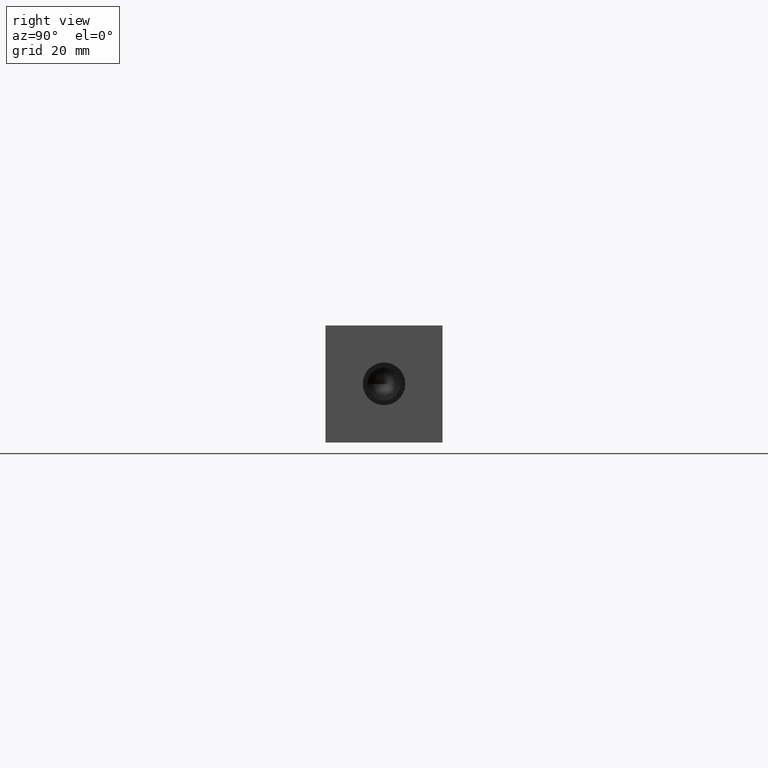
[diagram: clean part render]
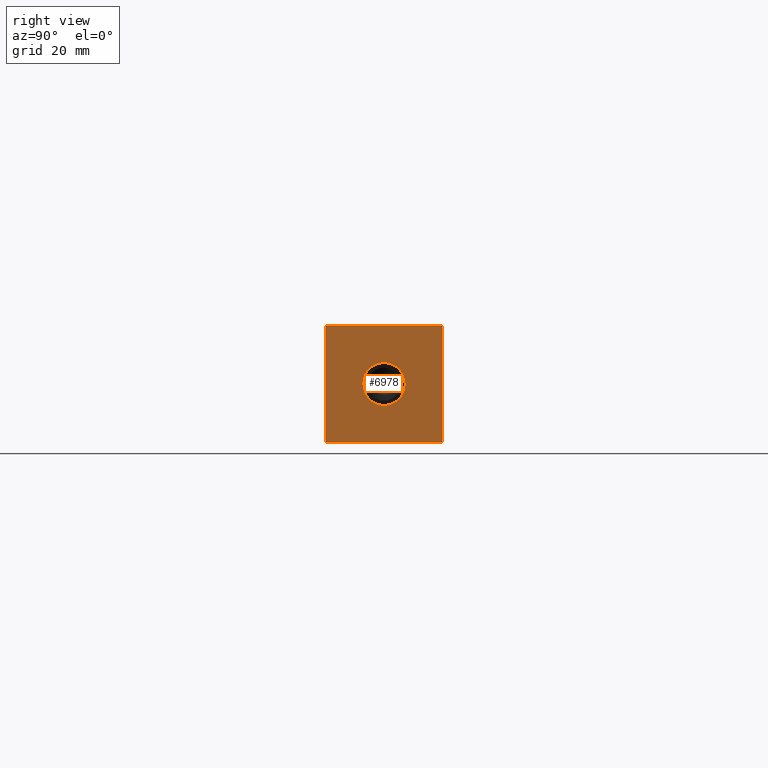
[diagram: same view with one face highlighted and labeled with its STEP entity id]
A machine part, right view. The second image highlights one B-rep face of the part: STEP entity #6978.
In plain terms, the highlighted planar face has unit normal (1, 0, 0).
Its self-contained STEP definition (entity closure, byte-faithful):
#127=CIRCLE('',#7310,6.9342);
#128=CIRCLE('',#7311,6.9342);
#186=FACE_BOUND('',#1160,.T.);
#401=PLANE('',#7326);
#755=FACE_OUTER_BOUND('',#1159,.T.);
#1159=EDGE_LOOP('',(#6201,#6202,#6203,#6204));
#1160=EDGE_LOOP('',(#6205,#6206));
#1407=LINE('',#10815,#2068);
#1827=LINE('',#11990,#2488);
#1828=LINE('',#11993,#2489);
#1829=LINE('',#11994,#2490);
#2068=VECTOR('',#7683,10.);
#2488=VECTOR('',#8649,10.);
#2489=VECTOR('',#8652,10.);
#2490=VECTOR('',#8653,10.);
#2993=VERTEX_POINT('',#10812);
#2994=VERTEX_POINT('',#10814);
#3336=VERTEX_POINT('',#11952);
#3337=VERTEX_POINT('',#11953);
#3348=VERTEX_POINT('',#11988);
#3349=VERTEX_POINT('',#11992);
#3783=EDGE_CURVE('',#2993,#2994,#1407,.T.);
#4287=EDGE_CURVE('',#3336,#3337,#127,.T.);
#4288=EDGE_CURVE('',#3337,#3336,#128,.T.);
#4305=EDGE_CURVE('',#3348,#2994,#1827,.T.);
#4306=EDGE_CURVE('',#3349,#3348,#1828,.T.);
#4307=EDGE_CURVE('',#3349,#2993,#1829,.T.);
#6201=ORIENTED_EDGE('',*,*,#4306,.T.);
#6202=ORIENTED_EDGE('',*,*,#4305,.T.);
#6203=ORIENTED_EDGE('',*,*,#3783,.F.);
#6204=ORIENTED_EDGE('',*,*,#4307,.F.);
#6205=ORIENTED_EDGE('',*,*,#4287,.T.);
#6206=ORIENTED_EDGE('',*,*,#4288,.T.);
#6978=ADVANCED_FACE('',(#755,#186),#401,.T.);
#7310=AXIS2_PLACEMENT_3D('',#11954,#8608,#8609);
#7311=AXIS2_PLACEMENT_3D('',#11955,#8610,#8611);
#7326=AXIS2_PLACEMENT_3D('',#11991,#8650,#8651);
#7683=DIRECTION('',(0.,1.,0.));
#8608=DIRECTION('center_axis',(-1.,0.,0.));
#8609=DIRECTION('ref_axis',(0.,1.,0.));
#8610=DIRECTION('center_axis',(-1.,0.,0.));
#8611=DIRECTION('ref_axis',(0.,1.,0.));
#8649=DIRECTION('',(0.,0.,1.));
#8650=DIRECTION('center_axis',(1.,0.,0.));
#8651=DIRECTION('ref_axis',(0.,1.,0.));
#8652=DIRECTION('',(0.,1.,0.));
#8653=DIRECTION('',(0.,0.,1.));
#10812=CARTESIAN_POINT('',(231.775,0.,38.1));
#10814=CARTESIAN_POINT('',(231.775,38.1,38.1));
#10815=CARTESIAN_POINT('',(231.775,0.,38.1));
#11952=CARTESIAN_POINT('',(231.775,25.9842,19.05));
#11953=CARTESIAN_POINT('',(231.775,12.1158,19.05));
#11954=CARTESIAN_POINT('Origin',(231.775,19.05,19.05));
#11955=CARTESIAN_POINT('Origin',(231.775,19.05,19.05));
#11988=CARTESIAN_POINT('',(231.775,38.1,0.));
#11990=CARTESIAN_POINT('',(231.775,38.1,0.));
#11991=CARTESIAN_POINT('Origin',(231.775,0.,0.));
#11992=CARTESIAN_POINT('',(231.775,0.,0.));
#11993=CARTESIAN_POINT('',(231.775,0.,0.));
#11994=CARTESIAN_POINT('',(231.775,0.,0.));